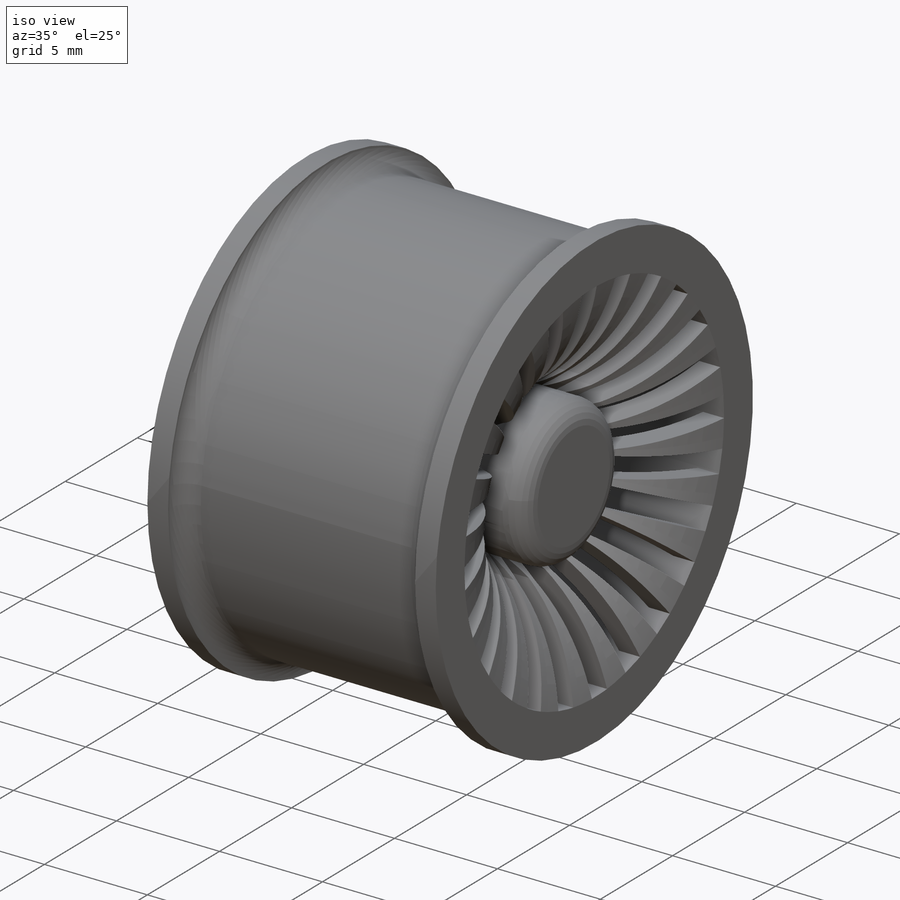
[diagram: iso view]
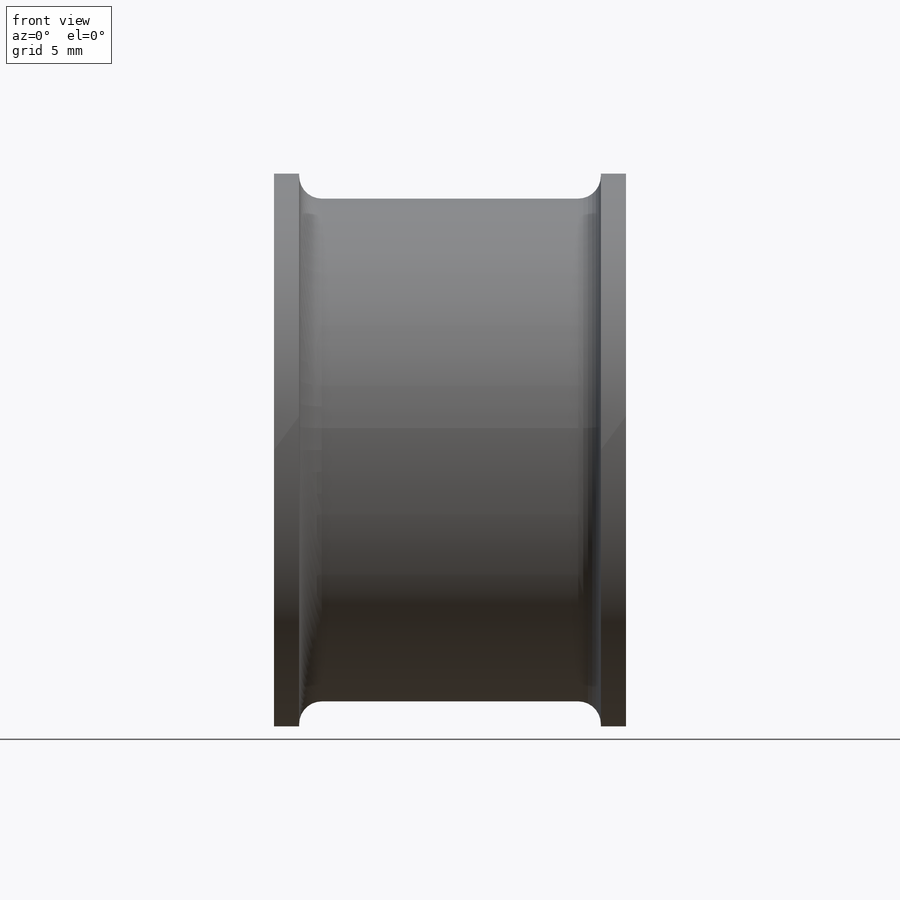
[diagram: front view]
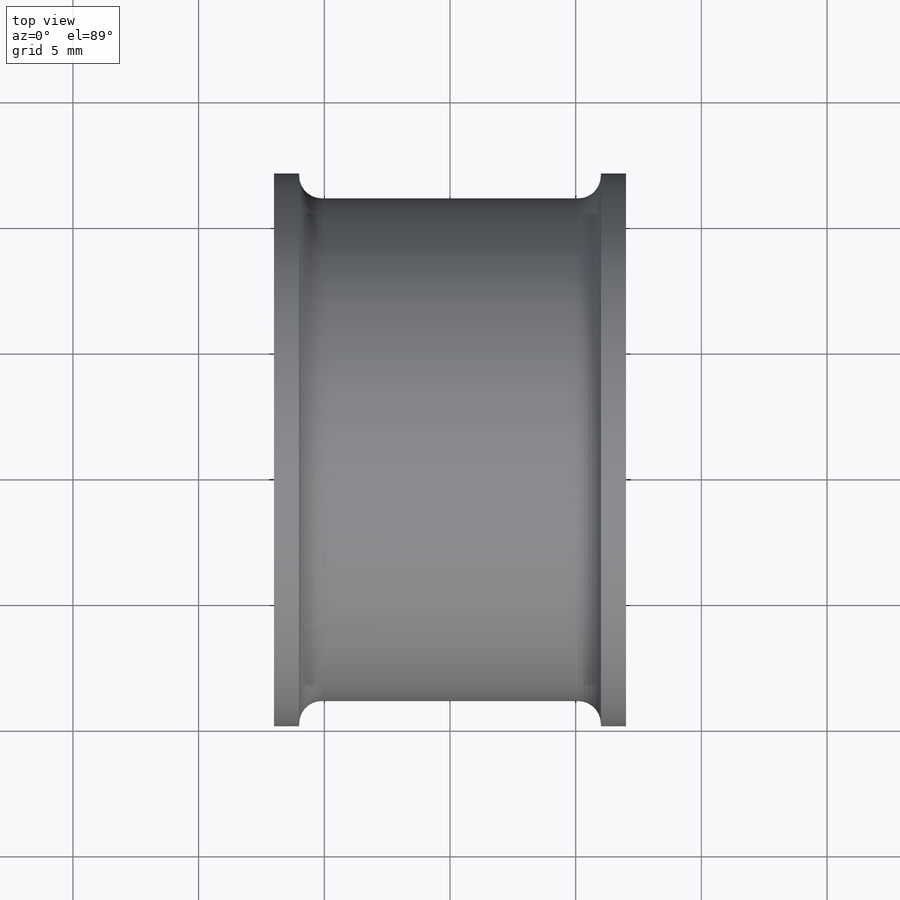
[diagram: top view]
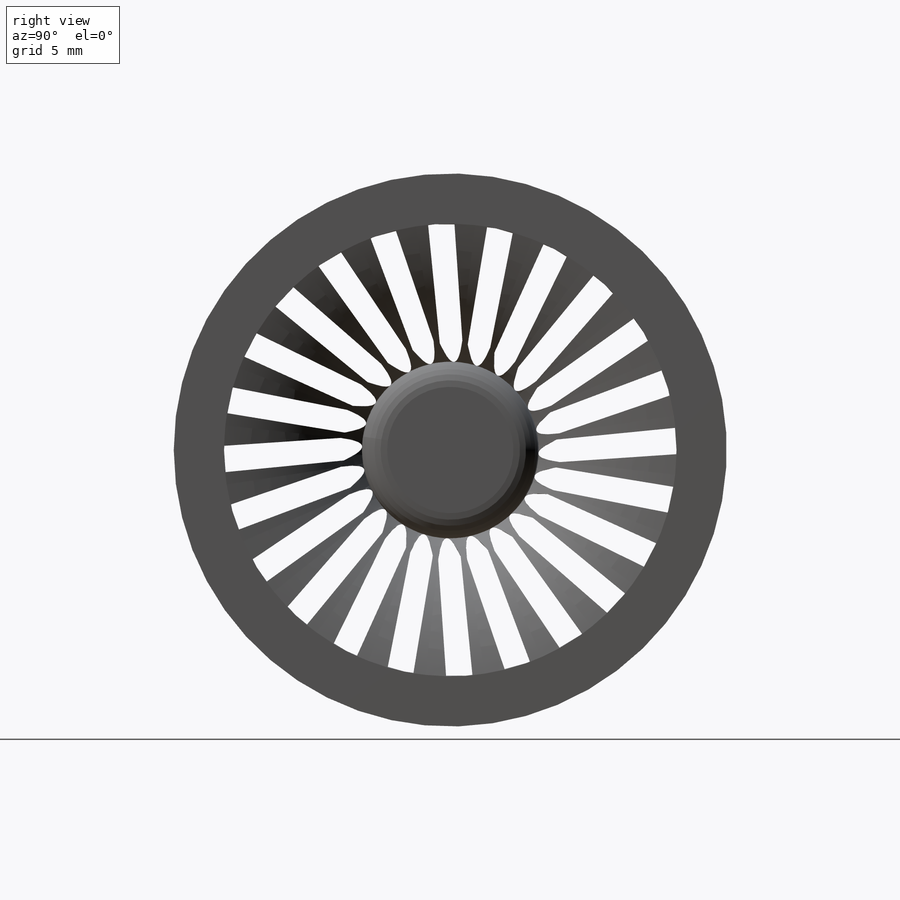
[diagram: right view]
SOLIDWORKS PART (.sldprt)
format: sldprt  version: not decoded by parser v0  size: 760,320 bytes
history: native  units: mm
features: sketch x4, extrude x2, material x1, revolve x1, cut_extrude x1, pattern_circular x1, fillet x1 (+13 scaffold rows collapsed)
feature tree (24):
  scaffold x13  (default folders/planes/origin — collapsed)
  material  "Material <not specified>"
  sketch  "Sketch1"  dims[c1.D5=0.9mm c1.D10=0.9mm c1.D7=0.9mm c1.D9=~5.395175mm c2.D5=0.9mm c2.D1=7.0mm c2.D2=2.0mm c2.D3=1.0mm c2.D4=1.0mm c3.D3=1.0mm c3.D4=1.0mm c3.D5=6.0mm c3.D6=10.0mm c3.D7=2.5mm c3.D8=5.0mm c3.D10=2.0mm c4.D7=2.5mm c4.D8=5.0mm c4.D9=2.0mm c4.D1=7.0mm c4.D2=2.0mm c4.D3=1.0mm c4.D4=1.0mm c4.D6=2.5mm c5.D7=5.0mm c5.D8=10.0mm c5.D9=1.0mm]
  revolve  "Revolve1"  Angle=360deg
  sketch  "Sketch3"
  extrude  "Boss-Extrude1"  Depth=13mm
  sketch  "Sketch4"
  extrude  "Boss-Extrude2"  Depth=2mm
  sketch  "Sketch5"
  cut_extrude  "Cut-Extrude3"  [1 undecoded]
  pattern_circular  "CirPattern5"  Count=25 Angle=15deg
  fillet  "Fillet1"  Radius=1mm
decode coverage: 6 of 10 modeling features carry decoded parameters
note: ~ marks probable driven/reference dimensions
note: 1 parameter value undecoded
note: suppression state not decoded; provenance and decode notes live in map.json
